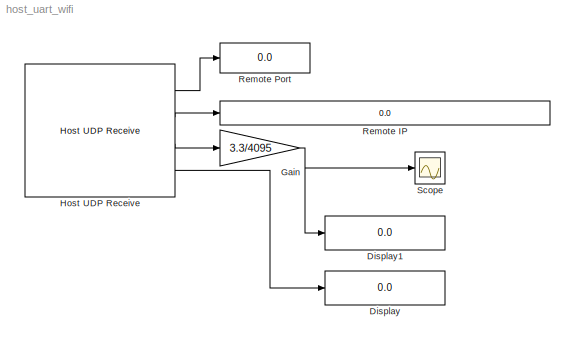
MODEL host_uart_wifi
KIND model
BLOCK [Display] Display
  Decimation = 1
  Format = hex (Stored Integer)
  Lockdown = off
  Ports = [1]
BLOCK [Display] Display1
  Decimation = 1
  Lockdown = off
  Ports = [1]
BLOCK [Gain] Gain
  Gain = 3.3/4095
  OutDataType = fixdt(1, 16)
  OutDataTypeMode = Inherit via internal rule
  OutDataTypeStr = Inherit: Inherit via internal rule
  OutScaling = 2^0
  ParamDataTypeStr = Inherit: Inherit via internal rule
  ParameterDataType = fixdt(1, 16)
  ParameterDataTypeMode = Inherit via internal rule
  ParameterScaling = 2^0
  SaturateOnIntegerOverflow = off
BLOCK [Reference] Host UDP Receive  REF=waijung_socket_lib/Host UDP Receive
  Ports = [0, 4]
  Priority = 1
  SourceBlock = waijung_socket_lib/Host UDP Receive
  SourceType = waijung_socket
  address = 192.168.1.31
  blockid = HostUDPReceive
  compat = 0
  conf = HostReceive
  datacount = 2
  datasource = Ports
  datatype = uint8
  echo = off
  inputportlabel = {}
  inputporttype = []
  inputportwidth = []
  options = [7,2,1,5000,0]
  optionstring = [\"UDP\",\"7\",\"192\",\"168\",\"1\",\"21\",\"Non-blocking\",\"PortData\",\"uint8_t\",\"2\",\"Send\",\"off\"]
  outputportlabel = {'Remote Port','Remote IP(1:4)','uint32 D0','uint32 D1'}
  outputporttype = [5,3,7,7]
  outputportwidth = [1,4,]
  port = 7
  portpinstr = 0
  porttype_double = 0
  porttype_int16 = 0
  porttype_int32 = 0
  porttype_int8 = 0
  porttype_single = 0
  porttype_uint16 = 0
  porttype_uint32 = 2
  porttype_uint8 = 0
  protocol = UDP
  sampletime = 0.001
  timeout = 5
  transfer = Blocking
BLOCK [Display] Remote IP
  Decimation = 1
  Lockdown = off
  Ports = [1]
BLOCK [Display] Remote Port
  Decimation = 1
  Format = long
  Lockdown = off
  Ports = [1]
BLOCK [Scope] Scope
  DataFormat = StructureWithTime
  Floating = off
  LimitDataPoints = off
  NumInputPorts = 1
  Ports = [1]
  SampleTime = 0
  YMax = 3.301
  YMin = 3.291
NET Gain:1 -> Display1:1, Scope:1
LINE Host UDP Receive:1 -> Remote Port:1
LINE Host UDP Receive:2 -> Remote IP:1
LINE Host UDP Receive:3 -> Gain:1
LINE Host UDP Receive:4 -> Display:1
note: NET lines group one-source signal fan-out (src -> all destinations, sorted); 1:1 wires keep LINE
